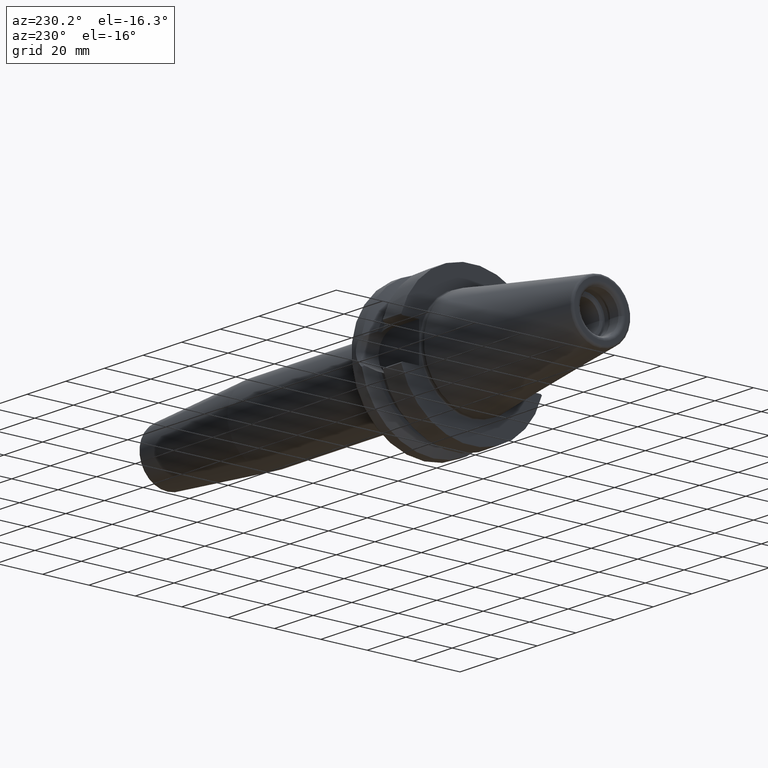
[diagram: clean part render]
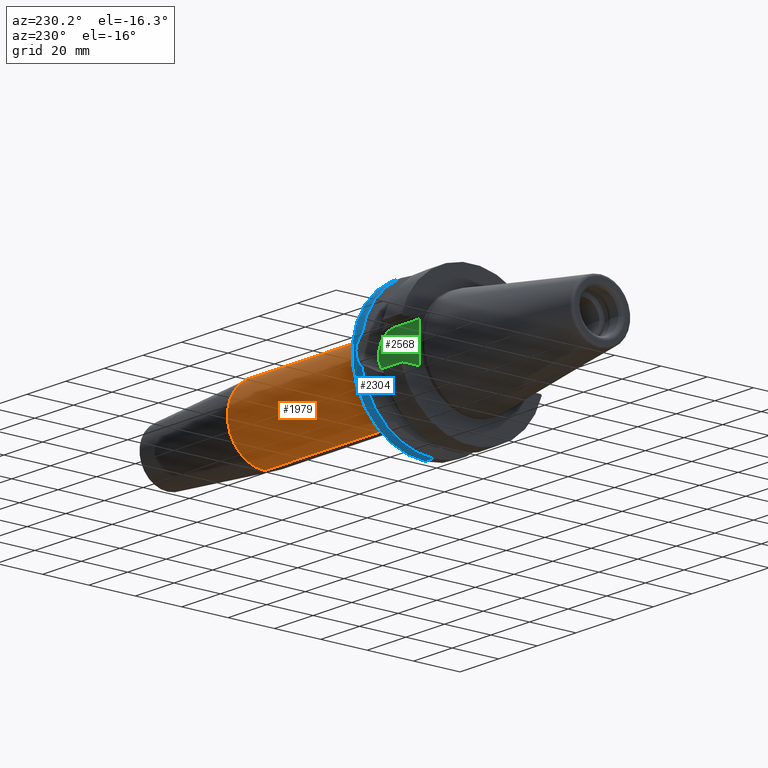
[diagram: same view with three faces highlighted in distinct colors, each labeled with its STEP entity id]
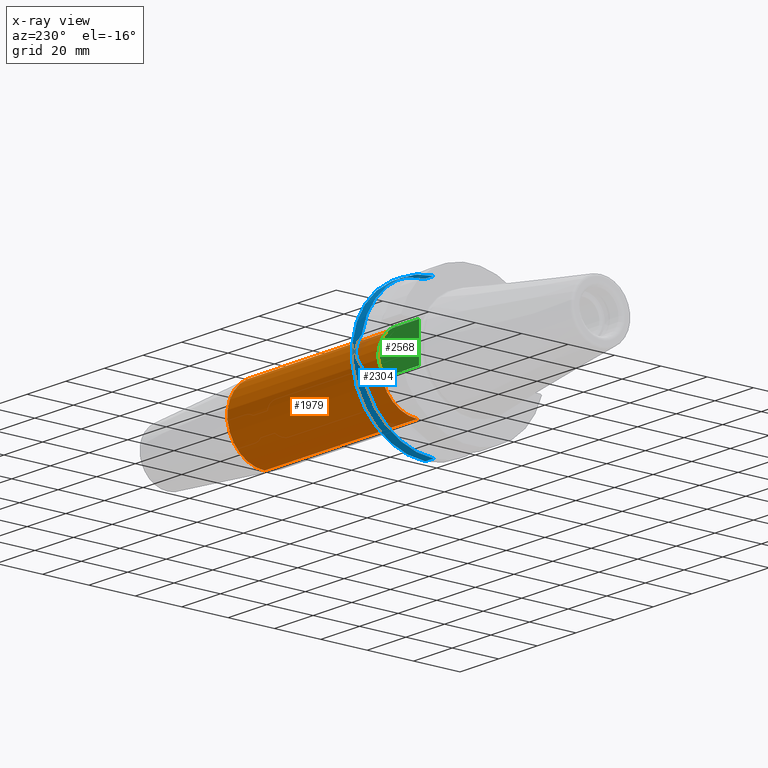
[diagram: x-ray of the same camera — body ghosted, the three highlighted faces saturated]
A machine part, auxiliary view with three faces highlighted in distinct colors.
The next image is the same camera in x-ray (body ghosted, the three faces saturated) — at least one of them is partly hidden behind the body in this view.
Their STEP definitions:

[orange] entity #1979 — the highlighted cylindrical surface (partial cylindrical patch) has radius 16 mm, axis along (1, 0, 0).
#458=CARTESIAN_POINT('',(1.091751810553E2,0.E0,0.E0));
#459=DIRECTION('',(1.E0,0.E0,0.E0));
#460=DIRECTION('',(0.E0,0.E0,-1.E0));
#461=AXIS2_PLACEMENT_3D('',#458,#459,#460);
#463=DIRECTION('',(-1.E0,0.E0,0.E0));
#464=VECTOR('',#463,7.917518105530E1);
#465=CARTESIAN_POINT('',(1.091751810553E2,0.E0,-1.6E1));
#466=LINE('',#465,#464);
#467=DIRECTION('',(-1.E0,0.E0,0.E0));
#468=VECTOR('',#467,7.917518105530E1);
#469=CARTESIAN_POINT('',(1.091751810553E2,0.E0,1.6E1));
#470=LINE('',#469,#468);
#1011=CARTESIAN_POINT('',(3.E1,0.E0,0.E0));
#1012=DIRECTION('',(1.E0,0.E0,0.E0));
#1013=DIRECTION('',(0.E0,0.E0,-1.E0));
#1014=AXIS2_PLACEMENT_3D('',#1011,#1012,#1013);
#1227=CARTESIAN_POINT('',(1.091751810553E2,0.E0,-1.6E1));
#1228=VERTEX_POINT('',#1227);
#1229=CARTESIAN_POINT('',(3.E1,0.E0,-1.6E1));
#1230=VERTEX_POINT('',#1229);
#1257=CARTESIAN_POINT('',(1.091751810553E2,0.E0,1.6E1));
#1258=VERTEX_POINT('',#1257);
#1259=CARTESIAN_POINT('',(3.E1,0.E0,1.6E1));
#1260=VERTEX_POINT('',#1259);
#1965=CARTESIAN_POINT('',(2.035E1,0.E0,0.E0));
#1966=DIRECTION('',(1.E0,0.E0,0.E0));
#1967=DIRECTION('',(0.E0,0.E0,1.E0));
#1968=AXIS2_PLACEMENT_3D('',#1965,#1966,#1967);
#1969=CYLINDRICAL_SURFACE('',#1968,1.6E1);
#1971=ORIENTED_EDGE('',*,*,#1970,.F.);
#1972=ORIENTED_EDGE('',*,*,#1960,.T.);
#1974=ORIENTED_EDGE('',*,*,#1973,.T.);
#1976=ORIENTED_EDGE('',*,*,#1975,.F.);
#1977=EDGE_LOOP('',(#1971,#1972,#1974,#1976));
#1978=FACE_OUTER_BOUND('',#1977,.F.);
#1979=ADVANCED_FACE('',(#1978),#1969,.T.);
#462=CIRCLE('',#461,1.6E1);
#1015=CIRCLE('',#1014,1.6E1);
#1960=EDGE_CURVE('',#1228,#1258,#462,.T.);
#1970=EDGE_CURVE('',#1228,#1230,#466,.T.);
#1973=EDGE_CURVE('',#1258,#1260,#470,.T.);
#1975=EDGE_CURVE('',#1230,#1260,#1015,.T.);

[blue] entity #2304 — the highlighted cylindrical surface (partial cylindrical patch) has radius 31.5 mm, axis along (-1, 0, 0).
#551=CARTESIAN_POINT('',(2.16309635E1,0.E0,0.E0));
#552=DIRECTION('',(1.E0,0.E0,0.E0));
#553=DIRECTION('',(0.E0,9.837685986673E-1,1.794417573372E-1));
#554=AXIS2_PLACEMENT_3D('',#551,#552,#553);
#567=CARTESIAN_POINT('',(2.16309635E1,0.E0,0.E0));
#568=DIRECTION('',(1.E0,0.E0,0.E0));
#569=DIRECTION('',(0.E0,0.E0,-1.E0));
#570=AXIS2_PLACEMENT_3D('',#567,#568,#569);
#749=CARTESIAN_POINT('',(2.16309635E1,3.098871085802E1,5.652415356123E0));
#750=CARTESIAN_POINT('',(2.205406470720E1,3.106442652067E1,5.237313027381E0));
#751=CARTESIAN_POINT('',(2.2780251E1,3.120646982831E1,4.364218678188E0));
#752=CARTESIAN_POINT('',(2.355147335538E1,3.137333408805E1,2.944611025888E0));
#753=CARTESIAN_POINT('',(2.400121643238E1,3.147668473496E1,1.481419229583E0));
#754=CARTESIAN_POINT('',(2.414939013882E1,3.151165725113E1,3.213223407089E-5));
#755=CARTESIAN_POINT('',(2.400122301211E1,3.147668626045E1,-1.481402813677E0));
#756=CARTESIAN_POINT('',(2.355147353015E1,3.137333411343E1,-2.944610541152E0));
#757=CARTESIAN_POINT('',(2.278025228010E1,3.120647009583E1,-4.364216804638E0));
#758=CARTESIAN_POINT('',(2.205406501027E1,3.106442657491E1,-5.237312730042E0));
#759=CARTESIAN_POINT('',(2.16309635E1,3.098871085802E1,-5.652415356123E0));
#761=DIRECTION('',(-1.E0,2.306190177167E-13,0.E0));
#762=VECTOR('',#761,4.3690365E0);
#763=CARTESIAN_POINT('',(2.6E1,-1.007582905999E-12,-3.15E1));
#764=LINE('',#763,#762);
#765=CARTESIAN_POINT('',(2.6E1,0.E0,0.E0));
#766=DIRECTION('',(-1.E0,0.E0,0.E0));
#767=DIRECTION('',(0.E0,0.E0,1.E0));
#768=AXIS2_PLACEMENT_3D('',#765,#766,#767);
#770=DIRECTION('',(-1.E0,-3.069721239902E-13,0.E0));
#771=VECTOR('',#770,4.3690365E0);
#772=CARTESIAN_POINT('',(2.6E1,1.339886535057E-12,3.15E1));
#773=LINE('',#772,#771);
#1062=CARTESIAN_POINT('',(2.6E1,0.E0,-3.15E1));
#1063=CARTESIAN_POINT('',(2.6E1,0.E0,3.15E1));
#1064=VERTEX_POINT('',#1062);
#1065=VERTEX_POINT('',#1063);
#1070=CARTESIAN_POINT('',(2.16309635E1,0.E0,-3.15E1));
#1071=VERTEX_POINT('',#1070);
#1072=CARTESIAN_POINT('',(2.16309635E1,0.E0,3.15E1));
#1073=VERTEX_POINT('',#1072);
#1138=VERTEX_POINT('',#749);
#1139=VERTEX_POINT('',#759);
#2290=CARTESIAN_POINT('',(0.E0,0.E0,0.E0));
#2291=DIRECTION('',(-1.E0,0.E0,0.E0));
#2292=DIRECTION('',(0.E0,0.E0,-1.E0));
#2293=AXIS2_PLACEMENT_3D('',#2290,#2291,#2292);
#2294=CYLINDRICAL_SURFACE('',#2293,3.15E1);
#2295=ORIENTED_EDGE('',*,*,#2250,.T.);
#2296=ORIENTED_EDGE('',*,*,#2092,.F.);
#2297=ORIENTED_EDGE('',*,*,#2054,.F.);
#2299=ORIENTED_EDGE('',*,*,#2298,.F.);
#2300=ORIENTED_EDGE('',*,*,#2051,.T.);
#2301=ORIENTED_EDGE('',*,*,#2075,.F.);
#2302=EDGE_LOOP('',(#2295,#2296,#2297,#2299,#2300,#2301));
#2303=FACE_OUTER_BOUND('',#2302,.F.);
#2304=ADVANCED_FACE('',(#2303),#2294,.T.);
#555=CIRCLE('',#554,3.15E1);
#571=CIRCLE('',#570,3.15E1);
#760=B_SPLINE_CURVE_WITH_KNOTS('',3,(#749,#750,#751,#752,#753,#754,#755,#756,
#757,#758,#759),.UNSPECIFIED.,.F.,.F.,(4,1,1,1,1,1,1,1,4),(0.E0,1.25E-1,2.5E-1,
3.75E-1,5.E-1,6.25E-1,7.5E-1,8.75E-1,1.E0),.UNSPECIFIED.);
#769=CIRCLE('',#768,3.15E1);
#2051=EDGE_CURVE('',#1065,#1073,#773,.T.);
#2054=EDGE_CURVE('',#1064,#1071,#764,.T.);
#2075=EDGE_CURVE('',#1138,#1073,#555,.T.);
#2092=EDGE_CURVE('',#1071,#1139,#571,.T.);
#2250=EDGE_CURVE('',#1138,#1139,#760,.T.);
#2298=EDGE_CURVE('',#1065,#1064,#769,.T.);

[green] entity #2568 — the highlighted planar face has unit normal (0, 1, 0).
#899=DIRECTION('',(0.E0,0.E0,-1.E0));
#900=VECTOR('',#899,1.61E1);
#901=CARTESIAN_POINT('',(2.E0,2.26E1,8.05E0));
#902=LINE('',#901,#900);
#989=CARTESIAN_POINT('',(1.495E1,2.26E1,0.E0));
#990=DIRECTION('',(0.E0,-1.E0,0.E0));
#991=DIRECTION('',(0.E0,0.E0,-1.E0));
#992=AXIS2_PLACEMENT_3D('',#989,#990,#991);
#994=DIRECTION('',(1.E0,0.E0,0.E0));
#995=VECTOR('',#994,1.295E1);
#996=CARTESIAN_POINT('',(2.E0,2.26E1,8.05E0));
#997=LINE('',#996,#995);
#998=DIRECTION('',(-1.E0,0.E0,0.E0));
#999=VECTOR('',#998,1.295E1);
#1000=CARTESIAN_POINT('',(1.495E1,2.26E1,-8.05E0));
#1001=LINE('',#1000,#999);
#1034=CARTESIAN_POINT('',(2.E0,2.26E1,8.05E0));
#1035=CARTESIAN_POINT('',(2.E0,2.26E1,-8.05E0));
#1036=VERTEX_POINT('',#1034);
#1037=VERTEX_POINT('',#1035);
#1054=CARTESIAN_POINT('',(1.495E1,2.26E1,-8.05E0));
#1055=CARTESIAN_POINT('',(1.495E1,2.26E1,8.05E0));
#1056=VERTEX_POINT('',#1054);
#1057=VERTEX_POINT('',#1055);
#2557=CARTESIAN_POINT('',(0.E0,2.26E1,0.E0));
#2558=DIRECTION('',(0.E0,1.E0,0.E0));
#2559=DIRECTION('',(1.E0,0.E0,0.E0));
#2560=AXIS2_PLACEMENT_3D('',#2557,#2558,#2559);
#2561=PLANE('',#2560);
#2562=ORIENTED_EDGE('',*,*,#2235,.T.);
#2563=ORIENTED_EDGE('',*,*,#2536,.F.);
#2564=ORIENTED_EDGE('',*,*,#2400,.T.);
#2565=ORIENTED_EDGE('',*,*,#2497,.F.);
#2566=EDGE_LOOP('',(#2562,#2563,#2564,#2565));
#2567=FACE_OUTER_BOUND('',#2566,.F.);
#2568=ADVANCED_FACE('',(#2567),#2561,.T.);
#993=CIRCLE('',#992,8.05E0);
#2235=EDGE_CURVE('',#1056,#1057,#993,.T.);
#2400=EDGE_CURVE('',#1036,#1037,#902,.T.);
#2497=EDGE_CURVE('',#1056,#1037,#1001,.T.);
#2536=EDGE_CURVE('',#1036,#1057,#997,.T.);